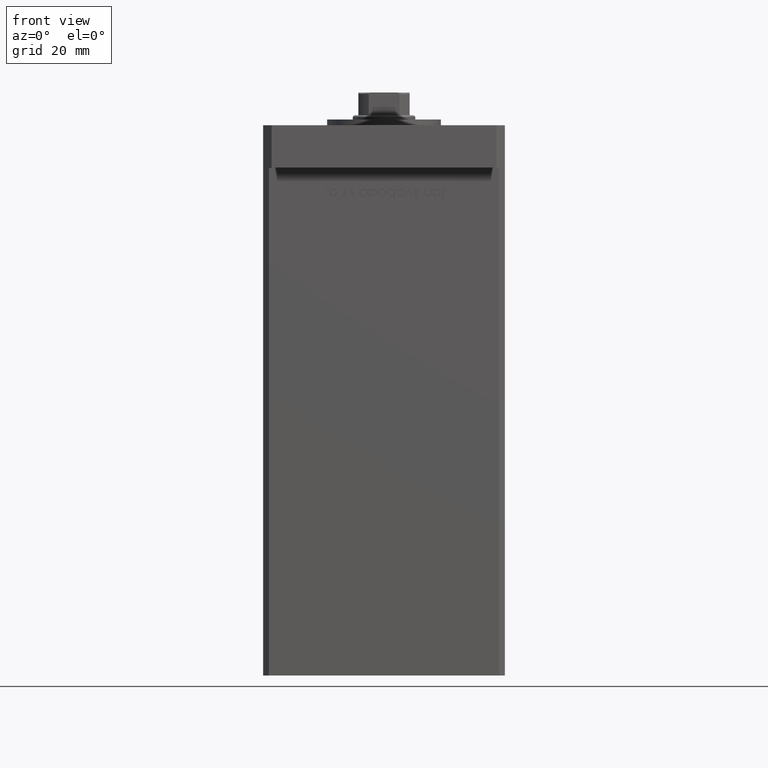
[diagram: clean part render]
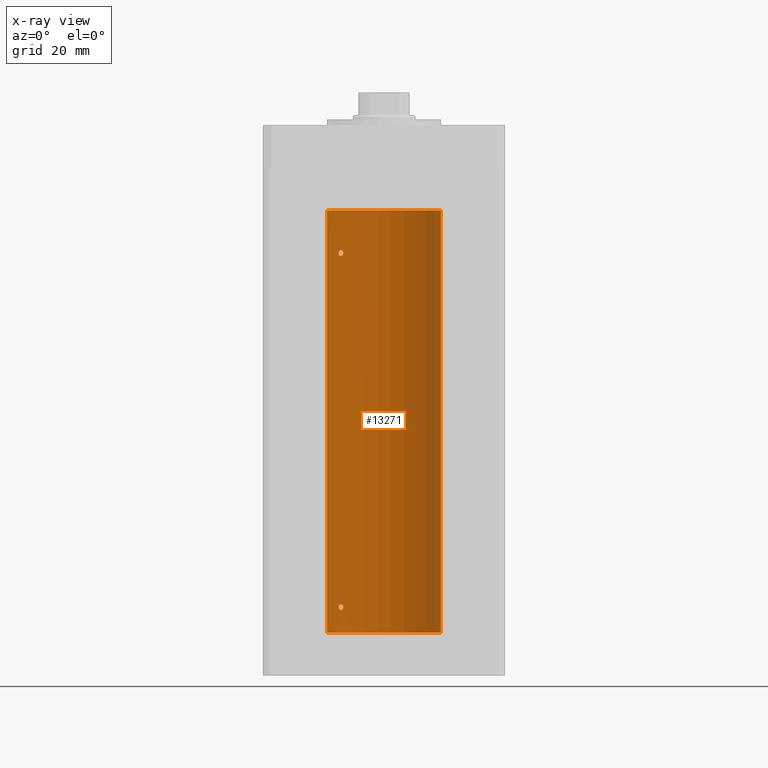
[diagram: x-ray — body ghosted, one internal face saturated and labeled with its STEP entity id]
A machine part, front view, then the same camera in x-ray: the body is ghosted and one INTERNAL B-rep face — a face not visible from any outside direction — is saturated and labeled: STEP entity #13271.
In plain terms, the highlighted cylindrical surface (partial cylindrical patch) has radius 20 mm, axis along (-0, -0, -1).
Its self-contained STEP definition (entity closure, byte-faithful):
#158 = CARTESIAN_POINT ( 'NONE',  ( -15.80909732170550441, 12.25106527276996182, 132.8244517809013701 ) ) ;
#556 = CARTESIAN_POINT ( 'NONE',  ( -15.28000793038419758, 12.90520882930644042, 134.5021502285312636 ) ) ;
#1494 = CARTESIAN_POINT ( 'NONE',  ( -14.28285685708538111, 14.00000000000032685, 133.4999999999998579 ) ) ;
#1613 = CARTESIAN_POINT ( 'NONE',  ( 20.00000000000000000, 2.449293598294706513E-15, 0.000000000000000000 ) ) ;
#1643 = CARTESIAN_POINT ( 'NONE',  ( -14.28285685708573460, 14.00000000000003020, 9.152512609665848231 ) ) ;
#1873 = VERTEX_POINT ( 'NONE', #1613 ) ;
#1977 = CARTESIAN_POINT ( 'NONE',  ( -14.28285685708538111, 14.00000000000032685, 133.4999999999998579 ) ) ;
#2175 = CARTESIAN_POINT ( 'NONE',  ( -14.78630942130979342, 13.46798002156744545, 9.891415279583984699 ) ) ;
#2661 = CARTESIAN_POINT ( 'NONE',  ( -15.99999999999999645, 12.00000000000000533, 9.000000000000007105 ) ) ;
#3580 = CARTESIAN_POINT ( 'NONE',  ( -14.51590294503183820, 13.75881262167379049, 8.336781207422369278 ) ) ;
#4228 = CARTESIAN_POINT ( 'NONE',  ( -15.87710824431565548, 12.16238752415382507, 132.9349218073222119 ) ) ;
#5163 = CARTESIAN_POINT ( 'NONE',  ( -15.37869370082499110, 12.78737709343838524, 134.4843784334833572 ) ) ;
#5428 = CARTESIAN_POINT ( 'NONE',  ( -15.80861854366320074, 12.25167421322532668, 134.1760529919017131 ) ) ;
#5978 = CARTESIAN_POINT ( 'NONE',  ( -14.44276720520014123, 13.83508275448403957, 9.554048662650284740 ) ) ;
#6196 = ORIENTED_EDGE ( 'NONE', *, *, #12997, .F. ) ;
#6246 = CARTESIAN_POINT ( 'NONE',  ( -15.65267653428113093, 12.45028749062556450, 9.845491151963438270 ) ) ;
#7019 = ORIENTED_EDGE ( 'NONE', *, *, #32727, .F. ) ;
#9323 = LINE ( 'NONE', #26112, #18626 ) ;
#9851 = EDGE_LOOP ( 'NONE', ( #7019, #15134 ) ) ;
#10044 = CARTESIAN_POINT ( 'NONE',  ( -14.98188199575990254, 13.25008090651449244, 9.975236402857763807 ) ) ;
#10313 = CARTESIAN_POINT ( 'NONE',  ( -15.37869370082498044, 12.78737709343839057, 9.984378433483321658 ) ) ;
#10650 = CARTESIAN_POINT ( 'NONE',  ( -15.37869471769012897, 12.79018928545119671, 7.995165913711809402 ) ) ;
#10692 = CARTESIAN_POINT ( 'NONE',  ( -14.28285685708538111, 14.00000000000032685, 133.4999999999998579 ) ) ;
#10893 = VERTEX_POINT ( 'NONE', #20532 ) ;
#11026 = CARTESIAN_POINT ( 'NONE',  ( 20.00000000000000000, 2.449293598294706513E-15, 148.5000000000000000 ) ) ;
#11460 = CARTESIAN_POINT ( 'NONE',  ( -14.69070843596623099, 13.57200975233014972, 8.170264738076786770 ) ) ;
#11502 = CARTESIAN_POINT ( 'NONE',  ( 0.000000000000000000, 0.000000000000000000, 0.000000000000000000 ) ) ;
#11568 = CARTESIAN_POINT ( 'NONE',  ( -14.51590294503182932, 13.75881262167379404, 132.8367812074223764 ) ) ;
#11590 = AXIS2_PLACEMENT_3D ( 'NONE', #11502, #12287, #29075 ) ;
#11963 = DIRECTION ( 'NONE',  ( -1.000000000000000000, 0.000000000000000000, 0.000000000000000000 ) ) ;
#12023 = CARTESIAN_POINT ( 'NONE',  ( -14.40763032799402055, 13.87162499441319063, 133.9952174752553162 ) ) ;
#12287 = DIRECTION ( 'NONE',  ( -0.000000000000000000, 0.000000000000000000, 1.000000000000000000 ) ) ;
#12997 = EDGE_CURVE ( 'NONE', #1873, #33778, #44486, .T. ) ;
#13015 = CARTESIAN_POINT ( 'NONE',  ( -15.99999999999999289, 12.00000000000001243, 133.6542407199934814 ) ) ;
#13271 = ADVANCED_FACE ( 'NONE', ( #47215, #26613, #22536 ), #19563, .F. ) ;
#13818 = CARTESIAN_POINT ( 'NONE',  ( -14.44276720520014656, 13.83508275448404312, 134.0540486626502741 ) ) ;
#14102 = CARTESIAN_POINT ( 'NONE',  ( -14.40763032799400989, 13.87162499441319952, 9.495217475255250505 ) ) ;
#14929 = ORIENTED_EDGE ( 'NONE', *, *, #51765, .T. ) ;
#14974 = CARTESIAN_POINT ( 'NONE',  ( -14.78531327857342781, 13.46907986586309569, 8.109099006911460350 ) ) ;
#15134 = ORIENTED_EDGE ( 'NONE', *, *, #23321, .F. ) ;
#15249 = CARTESIAN_POINT ( 'NONE',  ( -14.43642497935765512, 13.84184969151371547, 8.442053335922931723 ) ) ;
#15632 = CARTESIAN_POINT ( 'NONE',  ( -14.78531327857342959, 13.46907986586309924, 132.6090990069115207 ) ) ;
#16517 = VERTEX_POINT ( 'NONE', #11026 ) ;
#17340 = CARTESIAN_POINT ( 'NONE',  ( -15.87665094074984573, 12.16298652314402595, 134.0660500660140144 ) ) ;
#17878 = CARTESIAN_POINT ( 'NONE',  ( -14.31936354392035149, 13.96291496472315785, 133.8044284570273419 ) ) ;
#17990 = EDGE_LOOP ( 'NONE', ( #42640, #24251, #14929, #6196 ) ) ;
#18456 = DIRECTION ( 'NONE',  ( 1.000000000000000000, 0.000000000000000000, 0.000000000000000000 ) ) ;
#18626 = VECTOR ( 'NONE', #41860, 1000.000000000000000 ) ;
#19036 = CARTESIAN_POINT ( 'NONE',  ( -15.99999999999999645, 12.00000000000000533, 9.000000000000007105 ) ) ;
#19389 = VERTEX_POINT ( 'NONE', #50142 ) ;
#19521 = CARTESIAN_POINT ( 'NONE',  ( -16.00000000000000355, 12.00000000000000888, 9.154240719993499198 ) ) ;
#19563 = CYLINDRICAL_SURFACE ( 'NONE', #45400, 20.00000000000000000 ) ;
#19586 = CARTESIAN_POINT ( 'NONE',  ( -14.28285685708575414, 14.00000000000000000, 8.847421050659352915 ) ) ;
#20149 = CARTESIAN_POINT ( 'NONE',  ( -15.56338254739985949, 12.56194079578775025, 134.4068150496692908 ) ) ;
#20527 = CIRCLE ( 'NONE', #26597, 20.00000000000000000 ) ;
#20532 = CARTESIAN_POINT ( 'NONE',  ( -14.28285685708537756, 14.00000000000032863, 8.999999999999859668 ) ) ;
#20747 = CARTESIAN_POINT ( 'NONE',  ( -15.99999999999999289, 12.00000000000000888, 133.3456921886414079 ) ) ;
#22536 = FACE_BOUND ( 'NONE', #25118, .T. ) ;
#22760 = CARTESIAN_POINT ( 'NONE',  ( -15.80861854366319719, 12.25167421322532491, 9.676052991901711309 ) ) ;
#23321 = EDGE_CURVE ( 'NONE', #10893, #23636, #49886, .T. ) ;
#23380 = CARTESIAN_POINT ( 'NONE',  ( -14.28285685708537756, 14.00000000000032863, 8.999999999999859668 ) ) ;
#23636 = VERTEX_POINT ( 'NONE', #2661 ) ;
#23916 = CARTESIAN_POINT ( 'NONE',  ( -15.57359523075763086, 12.55100654799543136, 8.068614275410761039 ) ) ;
#24171 = VECTOR ( 'NONE', #45664, 1000.000000000000000 ) ;
#24251 = ORIENTED_EDGE ( 'NONE', *, *, #42364, .T. ) ;
#24731 = CARTESIAN_POINT ( 'NONE',  ( -20.00000000000000000, 0.000000000000000000, 148.5000000000000000 ) ) ;
#25118 = EDGE_LOOP ( 'NONE', ( #39292, #52691 ) ) ;
#25483 = CARTESIAN_POINT ( 'NONE',  ( -14.51882058315760204, 13.75524947942077958, 134.1587346592185952 ) ) ;
#26112 = CARTESIAN_POINT ( 'NONE',  ( 20.00000000000000000, 2.449293598294706513E-15, 148.5000000000000000 ) ) ;
#26597 = AXIS2_PLACEMENT_3D ( 'NONE', #35000, #43151, #18456 ) ;
#26613 = FACE_BOUND ( 'NONE', #9851, .T. ) ;
#27216 = CARTESIAN_POINT ( 'NONE',  ( -14.28285685708573105, 14.00000000000002665, 133.6525126096658767 ) ) ;
#27333 = EDGE_CURVE ( 'NONE', #19389, #51175, #50981, .T. ) ;
#27822 = CARTESIAN_POINT ( 'NONE',  ( -15.57359523075762908, 12.55100654799543847, 132.5686142754107379 ) ) ;
#27915 = CARTESIAN_POINT ( 'NONE',  ( -15.99999999999999645, 12.00000000000000533, 9.000000000000007105 ) ) ;
#28179 = CARTESIAN_POINT ( 'NONE',  ( -15.87665094074984928, 12.16298652314402950, 9.566050066014021525 ) ) ;
#29075 = DIRECTION ( 'NONE',  ( 1.000000000000000000, 0.000000000000000000, 0.000000000000000000 ) ) ;
#30622 = CARTESIAN_POINT ( 'NONE',  ( -14.31936354392034616, 13.96291496472316496, 9.304428457027329458 ) ) ;
#30898 = CARTESIAN_POINT ( 'NONE',  ( -15.28000793038418870, 12.90520882930645108, 10.00215022853123870 ) ) ;
#31230 = CARTESIAN_POINT ( 'NONE',  ( -15.87710824431566614, 12.16238752415382152, 8.434921807322286469 ) ) ;
#31988 = CARTESIAN_POINT ( 'NONE',  ( -15.97258576326346713, 12.03672672663914689, 9.305137409213733335 ) ) ;
#32161 = CARTESIAN_POINT ( 'NONE',  ( -14.69070843596622922, 13.57200975233015505, 132.6702647380768383 ) ) ;
#32617 = CARTESIAN_POINT ( 'NONE',  ( -15.08229700616151625, 13.13572892147764826, 134.4974307527148198 ) ) ;
#32727 = EDGE_CURVE ( 'NONE', #23636, #10893, #41525, .T. ) ;
#33778 = VERTEX_POINT ( 'NONE', #36137 ) ;
#33890 = CARTESIAN_POINT ( 'NONE',  ( -15.65267653428112027, 12.45028749062556983, 134.3454911519633868 ) ) ;
#34297 = CARTESIAN_POINT ( 'NONE',  ( -14.43642497935765334, 13.84184969151371547, 132.9420533359229069 ) ) ;
#34427 = CARTESIAN_POINT ( 'NONE',  ( -14.69171503997127104, 13.57092520311232420, 134.3305470397792760 ) ) ;
#34969 = CARTESIAN_POINT ( 'NONE',  ( -14.51882058315760027, 13.75524947942078313, 9.658734659218612961 ) ) ;
#35000 = CARTESIAN_POINT ( 'NONE',  ( 0.000000000000000000, 0.000000000000000000, 148.5000000000000000 ) ) ;
#35582 = CARTESIAN_POINT ( 'NONE',  ( -15.80909732170550441, 12.25106527276995649, 8.324451780901410913 ) ) ;
#35854 = CARTESIAN_POINT ( 'NONE',  ( -16.00000000000000355, 12.00000000000000711, 8.845692188641413267 ) ) ;
#36137 = CARTESIAN_POINT ( 'NONE',  ( -20.00000000000000000, 0.000000000000000000, 0.000000000000000000 ) ) ;
#36239 = CARTESIAN_POINT ( 'NONE',  ( -15.08054978948643488, 13.13774395934156658, 132.5027765441529937 ) ) ;
#36309 = EDGE_CURVE ( 'NONE', #16517, #1873, #9323, .T. ) ;
#36385 = CARTESIAN_POINT ( 'NONE',  ( -14.31871019372461795, 13.96358505023715679, 8.697478539577899070 ) ) ;
#37287 = CARTESIAN_POINT ( 'NONE',  ( -15.97265980134107721, 12.03662641108512332, 133.1953373148639344 ) ) ;
#37790 = LINE ( 'NONE', #53516, #24171 ) ;
#37827 = CARTESIAN_POINT ( 'NONE',  ( -14.28285685708575770, 13.99999999999999822, 133.3474210506593636 ) ) ;
#39292 = ORIENTED_EDGE ( 'NONE', *, *, #27333, .F. ) ;
#40473 = CARTESIAN_POINT ( 'NONE',  ( -15.08054978948644198, 13.13774395934156836, 8.002776544153007876 ) ) ;
#40661 = B_SPLINE_CURVE_WITH_KNOTS ( 'NONE', 3,
 ( #10692, #27216, #17878, #12023, #13818, #25483, #41029, #34427, #53220, #50156, #32617, #556, #5163, #20149, #33890, #5428, #17340, #50953, #13015, #50421 ),
 .UNSPECIFIED., .F., .F.,
 ( 4, 2, 2, 2, 2, 2, 2, 2, 2, 4 ),
 ( 0.003644921977557289642, 0.004100339128177169119, 0.004328047703487108641, 0.004555756278797049030, 0.005011173429416889910, 0.005466590580036730790, 0.005922007730656571670, 0.006377424881276412549, 0.006832842031896252562, 0.007288259182516093442 ),
 .UNSPECIFIED. ) ;
#40708 = DIRECTION ( 'NONE',  ( -0.000000000000000000, -0.000000000000000000, -1.000000000000000000 ) ) ;
#40966 = CARTESIAN_POINT ( 'NONE',  ( 0.000000000000000000, 0.000000000000000000, 148.5000000000000000 ) ) ;
#41029 = CARTESIAN_POINT ( 'NONE',  ( -14.56006338825495483, 13.71162570780885481, 134.2053579553633540 ) ) ;
#41368 = CARTESIAN_POINT ( 'NONE',  ( -15.99999999999999645, 12.00000000000000711, 133.5000000000000000 ) ) ;
#41525 = B_SPLINE_CURVE_WITH_KNOTS ( 'NONE', 3,
 ( #19036, #35854, #44536, #31230, #35582, #23916, #10650, #40473, #48857, #14974, #11460, #3580, #15249, #36385, #19586, #23380 ),
 .UNSPECIFIED., .F., .F.,
 ( 4, 2, 2, 2, 2, 2, 2, 4 ),
 ( 1.734723475976807094E-18, 0.0004556152471946670057, 0.0009112304943893322767, 0.001822460988778654796, 0.002278076235973315947, 0.002733691483167977315, 0.003189306730362638249, 0.003644921977557299617 ),
 .UNSPECIFIED. ) ;
#41860 = DIRECTION ( 'NONE',  ( -0.000000000000000000, -0.000000000000000000, -1.000000000000000000 ) ) ;
#42364 = EDGE_CURVE ( 'NONE', #16517, #47069, #20527, .T. ) ;
#42640 = ORIENTED_EDGE ( 'NONE', *, *, #36309, .F. ) ;
#42849 = CARTESIAN_POINT ( 'NONE',  ( -14.28285685708537756, 14.00000000000032863, 8.999999999999859668 ) ) ;
#43119 = CARTESIAN_POINT ( 'NONE',  ( -14.69171503997126571, 13.57092520311232420, 9.830547039779315099 ) ) ;
#43151 = DIRECTION ( 'NONE',  ( -0.000000000000000000, 0.000000000000000000, 1.000000000000000000 ) ) ;
#43382 = CARTESIAN_POINT ( 'NONE',  ( -15.56338254739985594, 12.56194079578775202, 9.906815049669292605 ) ) ;
#44383 = CARTESIAN_POINT ( 'NONE',  ( -15.37869471769012542, 12.79018928545120204, 132.4951659137118156 ) ) ;
#44486 = CIRCLE ( 'NONE', #11590, 20.00000000000000000 ) ;
#44536 = CARTESIAN_POINT ( 'NONE',  ( -15.97265980134107721, 12.03662641108511977, 8.695337314863900602 ) ) ;
#45400 = AXIS2_PLACEMENT_3D ( 'NONE', #40966, #40708, #11963 ) ;
#45664 = DIRECTION ( 'NONE',  ( -0.000000000000000000, -0.000000000000000000, -1.000000000000000000 ) ) ;
#47069 = VERTEX_POINT ( 'NONE', #24731 ) ;
#47171 = CARTESIAN_POINT ( 'NONE',  ( -14.56006338825494772, 13.71162570780885126, 9.705357955363320244 ) ) ;
#47215 = FACE_OUTER_BOUND ( 'NONE', #17990, .T. ) ;
#48019 = EDGE_CURVE ( 'NONE', #51175, #19389, #40661, .T. ) ;
#48857 = CARTESIAN_POINT ( 'NONE',  ( -14.98166541227929116, 13.25033217142396325, 8.024769614914280425 ) ) ;
#49886 = B_SPLINE_CURVE_WITH_KNOTS ( 'NONE', 3,
 ( #42849, #1643, #30622, #14102, #5978, #34969, #47171, #43119, #2175, #10044, #51504, #30898, #10313, #43382, #6246, #22760, #28179, #31988, #19521, #27915 ),
 .UNSPECIFIED., .F., .F.,
 ( 4, 2, 2, 2, 2, 2, 2, 2, 2, 4 ),
 ( 0.003644921977557299617, 0.004100339128177156109, 0.004328047703487083488, 0.004555756278797011734, 0.005011173429416868226, 0.005466590580036723851, 0.005922007730656580343, 0.006377424881276436835, 0.006832842031896293328, 0.007288259182516148953 ),
 .UNSPECIFIED. ) ;
#50142 = CARTESIAN_POINT ( 'NONE',  ( -15.99999999999999645, 12.00000000000000711, 133.5000000000000000 ) ) ;
#50156 = CARTESIAN_POINT ( 'NONE',  ( -14.98188199575990964, 13.25008090651448178, 134.4752364028577460 ) ) ;
#50421 = CARTESIAN_POINT ( 'NONE',  ( -15.99999999999999645, 12.00000000000000711, 133.5000000000000000 ) ) ;
#50826 = CARTESIAN_POINT ( 'NONE',  ( -14.31871019372461085, 13.96358505023716212, 133.1974785395779008 ) ) ;
#50953 = CARTESIAN_POINT ( 'NONE',  ( -15.97258576326347068, 12.03672672663914867, 133.8051374092137280 ) ) ;
#50981 = B_SPLINE_CURVE_WITH_KNOTS ( 'NONE', 3,
 ( #41368, #20747, #37287, #4228, #158, #27822, #44383, #36239, #52767, #15632, #32161, #11568, #34297, #50826, #37827, #1494 ),
 .UNSPECIFIED., .F., .F.,
 ( 4, 2, 2, 2, 2, 2, 2, 4 ),
 ( 0.000000000000000000, 0.0004556152471946448338, 0.0009112304943892896676, 0.001822460988778623354, 0.002278076235973289926, 0.002733691483167956498, 0.003189306730362623070, 0.003644921977557289642 ),
 .UNSPECIFIED. ) ;
#51175 = VERTEX_POINT ( 'NONE', #1977 ) ;
#51504 = CARTESIAN_POINT ( 'NONE',  ( -15.08229700616151270, 13.13572892147766247, 9.997430752714786095 ) ) ;
#51765 = EDGE_CURVE ( 'NONE', #47069, #33778, #37790, .T. ) ;
#52691 = ORIENTED_EDGE ( 'NONE', *, *, #48019, .F. ) ;
#52767 = CARTESIAN_POINT ( 'NONE',  ( -14.98166541227928761, 13.25033217142396325, 132.5247696149142769 ) ) ;
#53220 = CARTESIAN_POINT ( 'NONE',  ( -14.78630942130979697, 13.46798002156743479, 134.3914152795840096 ) ) ;
#53516 = CARTESIAN_POINT ( 'NONE',  ( -20.00000000000000000, 0.000000000000000000, 148.5000000000000000 ) ) ;